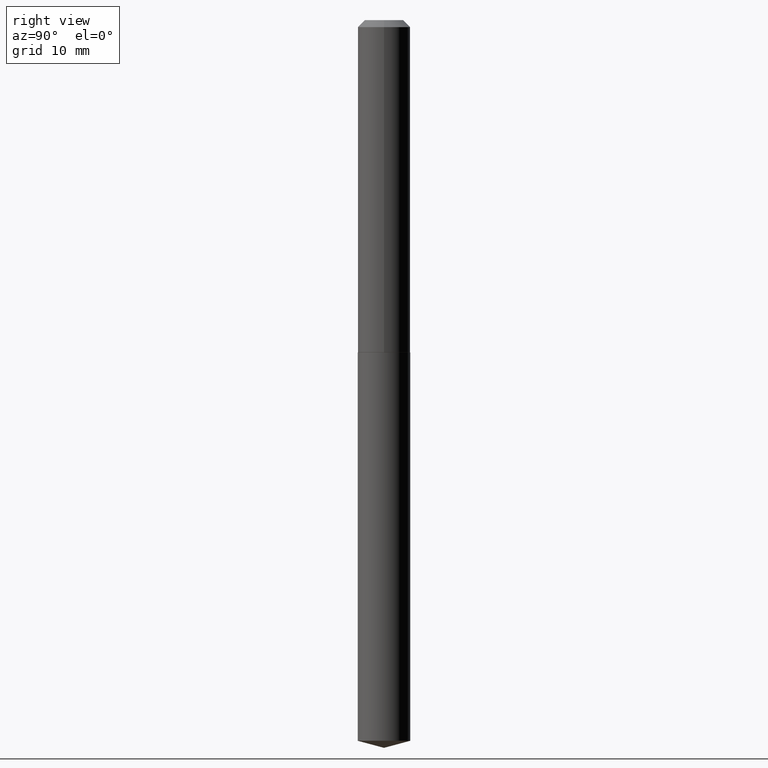
[diagram: clean part render]
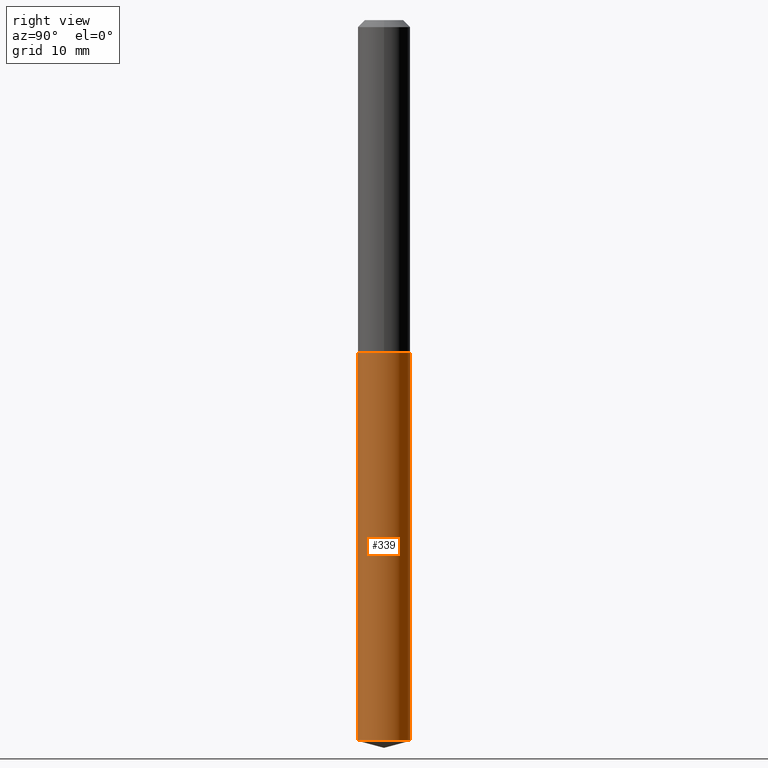
[diagram: same view with one face highlighted and labeled with its STEP entity id]
A machine part, right view. The second image highlights one B-rep face of the part: STEP entity #339.
In plain terms, the highlighted cylindrical surface (edge-blend (fillet) strip) has radius 2.9769 mm, axis along (-0, 0, 1).
Its self-contained STEP definition (entity closure, byte-faithful):
#6 = CARTESIAN_POINT ( 'NONE',  ( 3.630053895901215991E-29, -5.182754899378764899E-15, -1.484399999999999942 ) ) ;
#7 = CARTESIAN_POINT ( 'NONE',  ( 3.630053895901215991E-29, -5.182754899378764899E-15, -1.484399999999999942 ) ) ;
#8 = EDGE_CURVE ( 'NONE', #285, #324, #113, .T. ) ;
#16 = DIRECTION ( 'NONE',  ( -2.445384282229124111E-29, 3.491602381958960283E-15, 1.000000000000000000 ) ) ;
#43 = FACE_OUTER_BOUND ( 'NONE', #386, .T. ) ;
#50 = ORIENTED_EDGE ( 'NONE', *, *, #220, .F. ) ;
#66 = DIRECTION ( 'NONE',  ( -2.445384282229124111E-29, 3.491602381958959889E-15, 1.000000000000000000 ) ) ;
#68 = DIRECTION ( 'NONE',  ( -2.445384282229124111E-29, 3.491602381958960283E-15, 1.000000000000000000 ) ) ;
#69 = DIRECTION ( 'NONE',  ( -6.982962677686265922E-15, -1.000000000000000000, 2.330928322239132474E-15 ) ) ;
#101 = LINE ( 'NONE', #318, #124 ) ;
#113 = CIRCLE ( 'NONE', #264, 0.1171999999999999986 ) ;
#124 = VECTOR ( 'NONE', #313, 39.37007874015748143 ) ;
#125 = CIRCLE ( 'NONE', #225, 0.1171999999999999986 ) ;
#133 = DIRECTION ( 'NONE',  ( -6.982962677686265922E-15, -1.000000000000000000, 2.330928322239132474E-15 ) ) ;
#145 = VERTEX_POINT ( 'NONE', #299 ) ;
#169 = LINE ( 'NONE', #286, #271 ) ;
#192 = CARTESIAN_POINT ( 'NONE',  ( 8.327560863109162941E-16, 0.1171999999999948083, -1.484400000000000164 ) ) ;
#220 = EDGE_CURVE ( 'NONE', #145, #265, #125, .T. ) ;
#225 = AXIS2_PLACEMENT_3D ( 'NONE', #6, #68, #69 ) ;
#233 = ORIENTED_EDGE ( 'NONE', *, *, #281, .T. ) ;
#236 = ORIENTED_EDGE ( 'NONE', *, *, #269, .F. ) ;
#244 = DIRECTION ( 'NONE',  ( -2.445384282229124111E-29, 3.491602381958960283E-15, 1.000000000000000000 ) ) ;
#251 = CYLINDRICAL_SURFACE ( 'NONE', #366, 0.1171999999999999986 ) ;
#253 = CARTESIAN_POINT ( 'NONE',  ( 8.327560863109157025E-16, 0.1171999999999887299, -3.218596354647072832 ) ) ;
#264 = AXIS2_PLACEMENT_3D ( 'NONE', #279, #244, #280 ) ;
#265 = VERTEX_POINT ( 'NONE', #192 ) ;
#269 = EDGE_CURVE ( 'NONE', #285, #145, #101, .T. ) ;
#271 = VECTOR ( 'NONE', #66, 39.37007874015748143 ) ;
#279 = CARTESIAN_POINT ( 'NONE',  ( 7.870830403854212506E-29, -1.123787902204902802E-14, -3.218596354647072388 ) ) ;
#280 = DIRECTION ( 'NONE',  ( -6.982962677686265922E-15, -1.000000000000000000, 4.661856644478264948E-15 ) ) ;
#281 = EDGE_CURVE ( 'NONE', #324, #265, #169, .T. ) ;
#285 = VERTEX_POINT ( 'NONE', #311 ) ;
#286 = CARTESIAN_POINT ( 'NONE',  ( 8.327560863108735971E-16, 0.1171999999999948083, -1.484400000000000164 ) ) ;
#299 = CARTESIAN_POINT ( 'NONE',  ( -8.184032258247940691E-16, -0.1172000000000051889, -1.484399999999999498 ) ) ;
#311 = CARTESIAN_POINT ( 'NONE',  ( -8.184032258247513720E-16, -0.1172000000000111841, -3.218596354647071944 ) ) ;
#313 = DIRECTION ( 'NONE',  ( -2.445384282229124111E-29, 3.491602381958959889E-15, 1.000000000000000000 ) ) ;
#318 = CARTESIAN_POINT ( 'NONE',  ( -8.184032258247940691E-16, -0.1172000000000051889, -1.484399999999999498 ) ) ;
#324 = VERTEX_POINT ( 'NONE', #253 ) ;
#339 = ADVANCED_FACE ( 'NONE', ( #43 ), #251, .T. ) ;
#358 = ORIENTED_EDGE ( 'NONE', *, *, #8, .T. ) ;
#366 = AXIS2_PLACEMENT_3D ( 'NONE', #7, #16, #133 ) ;
#386 = EDGE_LOOP ( 'NONE', ( #358, #233, #50, #236 ) ) ;